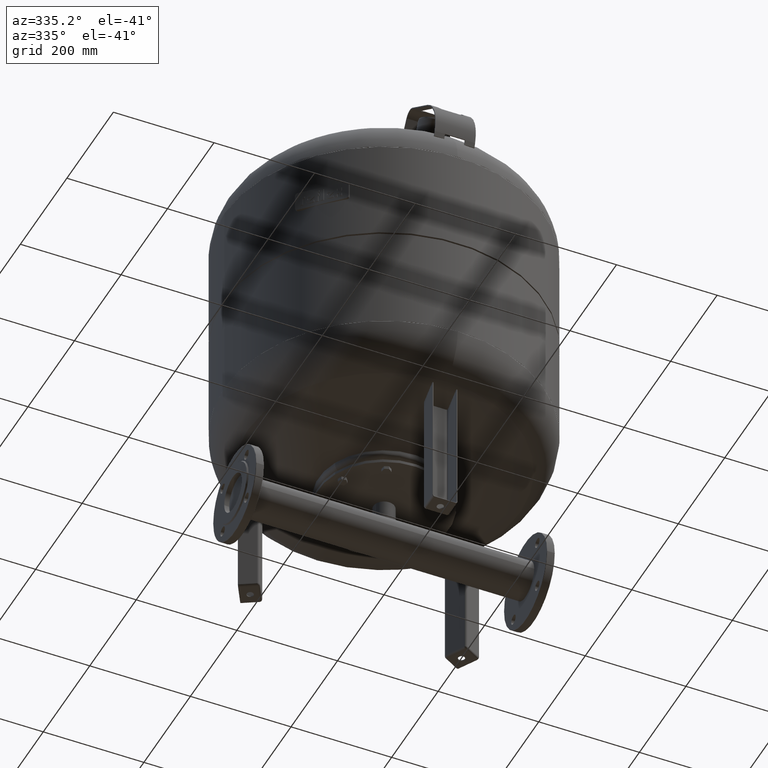
[diagram: clean part render]
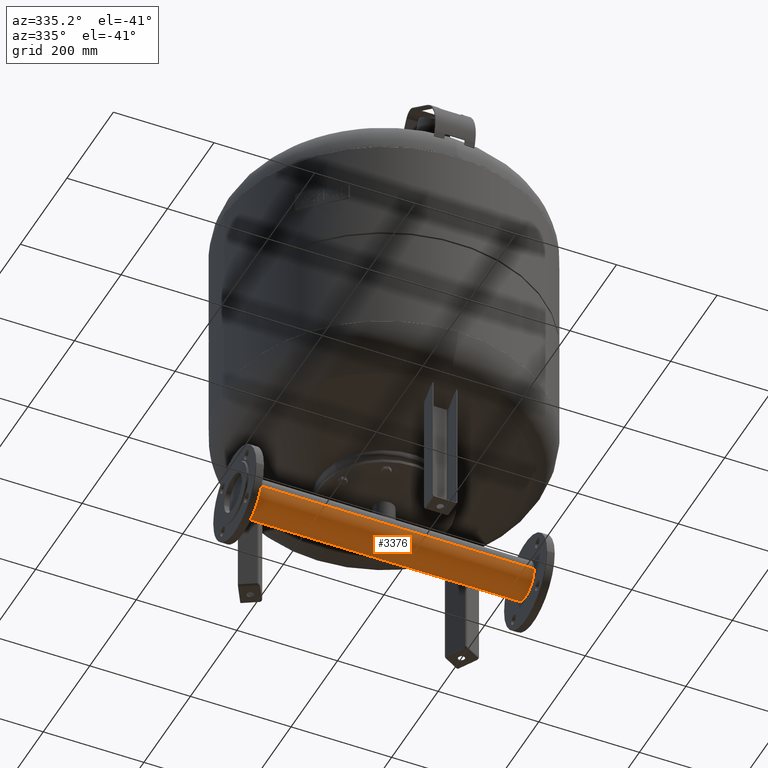
[diagram: same view with one face highlighted and labeled with its STEP entity id]
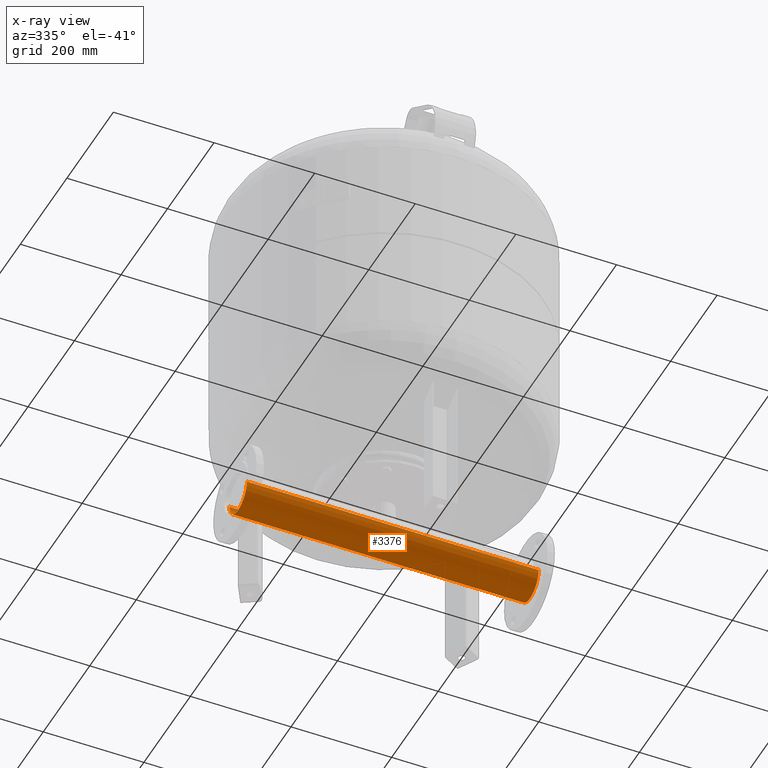
[diagram: x-ray of the same camera — body ghosted, the highlighted face saturated]
A machine part, auxiliary view. The second image highlights one B-rep face of the part: STEP entity #3376.
The next image is the same camera in x-ray: the body ghosted, the highlighted face saturated — about 0% of this face is hidden behind the body in this view.
In plain terms, the highlighted cylindrical surface (edge-blend (fillet) strip) has radius 38.05 mm, axis along (-1, 0, 0).
Its self-contained STEP definition (entity closure, byte-faithful):
#3335=CARTESIAN_POINT('',(-247.500000000000030,0.0,115.000000000000010));
#3336=DIRECTION('',(-1.0,0.0,0.0));
#3337=DIRECTION('',(0.0,-1.0,0.0));
#3338=AXIS2_PLACEMENT_3D('',#3335,#3336,#3337);
#3339=CYLINDRICAL_SURFACE('',#3338,38.049999999999997);
#3340=CARTESIAN_POINT('',(-290.0,-38.049999999999997,115.000000000000010));
#3341=VERTEX_POINT('',#3340);
#3342=CARTESIAN_POINT('',(290.0,-38.049999999999997,115.000000000000010));
#3343=VERTEX_POINT('',#3342);
#3344=CARTESIAN_POINT('',(-290.0,-38.049999999999997,115.000000000000010));
#3345=DIRECTION('',(1.0,0.0,0.0));
#3346=VECTOR('',#3345,580.0);
#3347=LINE('',#3344,#3346);
#3348=EDGE_CURVE('',#3341,#3343,#3347,.T.);
#3349=ORIENTED_EDGE('',*,*,#3348,.F.);
#3350=CARTESIAN_POINT('',(-290.0,38.049999999999997,115.000000000000010));
#3351=VERTEX_POINT('',#3350);
#3352=CARTESIAN_POINT('',(-290.0,0.0,115.000000000000010));
#3353=DIRECTION('',(-1.0,0.0,0.0));
#3354=DIRECTION('',(0.0,-1.0,0.0));
#3355=AXIS2_PLACEMENT_3D('',#3352,#3353,#3354);
#3356=CIRCLE('',#3355,38.049999999999997);
#3357=EDGE_CURVE('',#3351,#3341,#3356,.T.);
#3358=ORIENTED_EDGE('',*,*,#3357,.F.);
#3359=CARTESIAN_POINT('',(290.0,38.049999999999997,115.000000000000010));
#3360=VERTEX_POINT('',#3359);
#3361=CARTESIAN_POINT('',(-290.0,38.049999999999997,115.000000000000010));
#3362=DIRECTION('',(1.0,0.0,0.0));
#3363=VECTOR('',#3362,580.0);
#3364=LINE('',#3361,#3363);
#3365=EDGE_CURVE('',#3351,#3360,#3364,.T.);
#3366=ORIENTED_EDGE('',*,*,#3365,.T.);
#3367=CARTESIAN_POINT('',(290.0,0.0,115.000000000000010));
#3368=DIRECTION('',(-1.0,0.0,0.0));
#3369=DIRECTION('',(0.0,-1.0,0.0));
#3370=AXIS2_PLACEMENT_3D('',#3367,#3368,#3369);
#3371=CIRCLE('',#3370,38.049999999999997);
#3372=EDGE_CURVE('',#3360,#3343,#3371,.T.);
#3373=ORIENTED_EDGE('',*,*,#3372,.T.);
#3374=EDGE_LOOP('',(#3349,#3358,#3366,#3373));
#3375=FACE_OUTER_BOUND('',#3374,.T.);
#3376=ADVANCED_FACE('',(#3375),#3339,.T.);